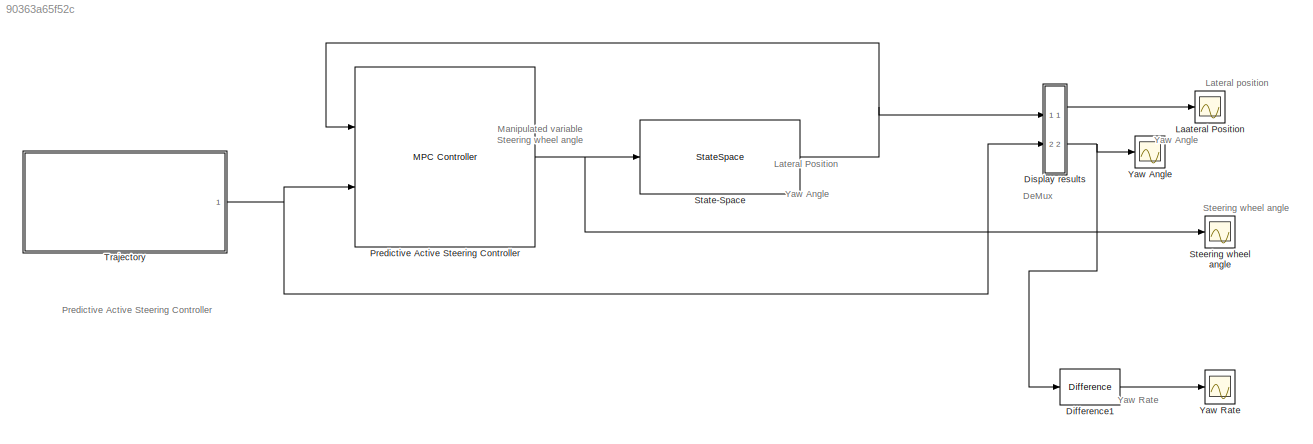
MODEL slx_90363a65f52c
KIND model
CONFIG AbsTol = auto
CONFIG EnableMultiTasking = off
CONFIG FixedStep = auto
CONFIG MaxStep = auto
CONFIG MinStep = auto
CONFIG RelTol = 1e-3
CONFIG SampleTimeConstraint = Unconstrained
CONFIG SolverName = VariableStepAuto
CONFIG StartTime = 0.0
CONFIG StopTime = 10
BLOCK [Reference] Difference1  REF=simulink/Discrete/Difference
  Ports = [1, 1]
  SourceBlock = simulink/Discrete/Difference
  SourceProductBaseCode = SL
  SourceType = Difference
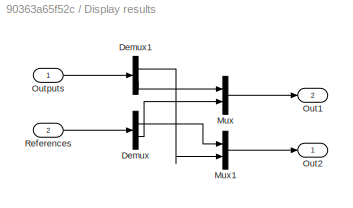
BLOCK [SubSystem] Display results
  Ports = [2, 2]
  RequestExecContextInheritance = off
  ShowPortLabels = none
BLOCK [Demux] Display results/Demux
  Outputs = 2
  Ports = [1, 2]
BLOCK [Demux] Display results/Demux1
  Outputs = 2
  Ports = [1, 2]
BLOCK [Mux] Display results/Mux
  DisplayOption = bar
  Inputs = 2
  Ports = [2, 1]
BLOCK [Mux] Display results/Mux1
  DisplayOption = bar
  Inputs = 2
  Ports = [2, 1]
BLOCK [Outport] Display results/Out1
  Port = 2
  VectorParamsAs1DForOutWhenUnconnected = off
BLOCK [Outport] Display results/Out2
  VectorParamsAs1DForOutWhenUnconnected = off
BLOCK [Inport] Display results/Outputs
BLOCK [Inport] Display results/References
  Port = 2
BLOCK [Scope] Laateral Position
  Floating = off
  NumInputPorts = 1
  Ports = [1]
  ScopeSpecificationString = Simulink.scopes.TimeScopeBlockCfg('CurrentConfiguration', extmgr.ConfigurationSet(extmgr.Configuration('Core','General UI',true),extmgr.Configuration('Core','Source UI',true),extmgr.Configuration('Sources','WiredSimulink',true),extmgr.Configuration('Visuals','Time Domain',true,'SerializedDisplays',{struct('MinYLimReal','-24.8568','MaxYLimReal','3.74354','YLabelReal','','MinYLimMag','0.00000','MaxY...<+1473ch>
BLOCK [Reference] Predictive Active Steering Controller  REF=mpclib/MPC Controller  (lib defined in mdl_ae329e0e0455)
  Ports = [2, 1]
  SCDEnableBlockLinearizationSpecification = on
  SourceBlock = mpclib/MPC Controller
  SourceProductBaseCode = MP
  SourceType = MPC
BLOCK [StateSpace] State-Space
  A = [-(2*Cf+2*Cr)/m/Vx, 0, -Vx-(2*Cf*a-2*Cr*b)/m/Vx, 0;\n     0, 0, 1, 0;\n     -(2*Cf*a-2*Cr*b)/Iz/Vx, 0, -(2*Cf*a^2+2*Cr*b^2)/Iz/Vx, 0;\n     1, Vx, 0, 0]
  B = [2*Cf/m 0 2*Cf*a/Iz 0]'
  C = [0 0 0 1;0 1 0 0]
  D = [0;0]
  InitialCondition = 0
  Ports = [1, 1]
BLOCK [Scope] Steering wheel angle
  Floating = off
  NumInputPorts = 1
  Ports = [1]
  ScopeSpecificationString = Simulink.scopes.TimeScopeBlockCfg('CurrentConfiguration', extmgr.ConfigurationSet(extmgr.Configuration('Core','General UI',true),extmgr.Configuration('Core','Source UI',true),extmgr.Configuration('Sources','WiredSimulink',true,'DataLoggingVariableName','ScopeData1'),extmgr.Configuration('Visuals','Time Domain',true,'SerializedDisplays',{struct('MinYLimReal','-0.44391','MaxYLimReal','0.6311','YLabe...<+1427ch>
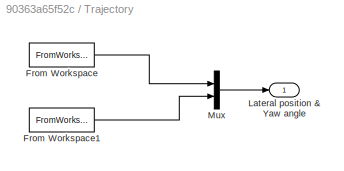
BLOCK [SubSystem] Trajectory
  Ports = [0, 1]
  RequestExecContextInheritance = off
  TreatAsAtomicUnit = on
BLOCK [FromWorkspace] Trajectory/From Workspace
  SampleTime = 0.1
  VariableName = [t', posRef(:,2)]
BLOCK [FromWorkspace] Trajectory/From Workspace1
  SampleTime = 0.1
  VariableName = [t', deg2rad(yawRef)']
BLOCK [Outport] Trajectory/Lateral position & Yaw angle
  VectorParamsAs1DForOutWhenUnconnected = off
BLOCK [Mux] Trajectory/Mux
  DisplayOption = bar
  Inputs = 2
  Ports = [2, 1]
BLOCK [Scope] Yaw Angle
  Floating = off
  NumInputPorts = 1
  Ports = [1]
  ScopeSpecificationString = Simulink.scopes.TimeScopeBlockCfg('CurrentConfiguration', extmgr.ConfigurationSet(extmgr.Configuration('Core','General UI',true),extmgr.Configuration('Core','Source UI',true),extmgr.Configuration('Sources','WiredSimulink',true,'DataLoggingVariableName','ScopeData1'),extmgr.Configuration('Visuals','Time Domain',true,'SerializedDisplays',{struct('MinYLimReal','-0.30141','MaxYLimReal','0.20705','YLab...<+1468ch>
BLOCK [Scope] Yaw Rate
  Floating = off
  NumInputPorts = 1
  Ports = [1]
  ScopeSpecificationString = Simulink.scopes.TimeScopeBlockCfg('CurrentConfiguration', extmgr.ConfigurationSet(extmgr.Configuration('Core','General UI',true),extmgr.Configuration('Core','Source UI',true),extmgr.Configuration('Sources','WiredSimulink',true,'DataLoggingVariableName','ScopeData1'),extmgr.Configuration('Visuals','Time Domain',true,'SerializedDisplays',{struct('MinYLimReal','-1.39337','MaxYLimReal','1.06136','YLab...<+1748ch>
ANNOTATION (root): Predictive Active Steering Controller
ANNOTATION (root): Manipulated variable Steering wheel angle
ANNOTATION (root): DeMux
ANNOTATION (root): Lateral Position
ANNOTATION (root): Lateral position
ANNOTATION (root): Steering wheel angle
ANNOTATION (root): Yaw Angle
ANNOTATION (root): Yaw Rate
LINE Difference1:1 -> Yaw Rate:1
LINE Display results/Demux1:1 -> Display results/Mux1:2
LINE Display results/Demux1:2 -> Display results/Mux:1
LINE Display results/Demux:1 -> Display results/Mux1:1
LINE Display results/Demux:2 -> Display results/Mux:2
LINE Display results/Mux1:1 -> Display results/Out2:1
LINE Display results/Mux:1 -> Display results/Out1:1
LINE Display results/Outputs:1 -> Display results/Demux1:1
LINE Display results/References:1 -> Display results/Demux:1
LINE Display results:1 -> Laateral Position:1
NET Display results:2 -> Difference1:1, Yaw Angle:1
NET Predictive Active Steering Controller:1 -> State-Space:1, Steering wheel angle:1
NET State-Space:1 -> Display results:1, Predictive Active Steering Controller:1
LINE Trajectory/From Workspace1:1 -> Trajectory/Mux:2
LINE Trajectory/From Workspace:1 -> Trajectory/Mux:1
LINE Trajectory/Mux:1 -> Trajectory/Lateral position & Yaw angle:1
NET Trajectory:1 -> Display results:2, Predictive Active Steering Controller:2
note: NET lines group one-source signal fan-out (src -> all destinations, sorted); 1:1 wires keep LINE
